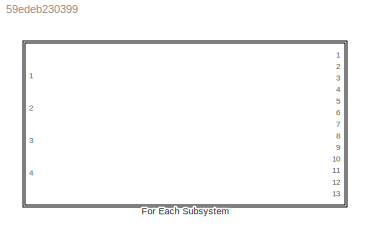
MODEL slx_59edeb230399
KIND library
CONFIG AbsTol = auto
CONFIG EnableMultiTasking = off
CONFIG FixedStep = auto
CONFIG MaxStep = auto
CONFIG MinStep = auto
CONFIG RelTol = 1e-3
CONFIG SampleTimeConstraint = Unconstrained
CONFIG Solver = VariableStepAuto
CONFIG SolverName = VariableStepAuto
CONFIG StartTime = 0.0
CONFIG StopTime = 10.0
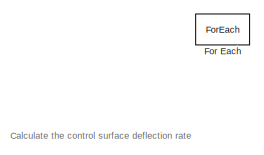
[diagram: For Each Subsystem - part 1/3, top left region]
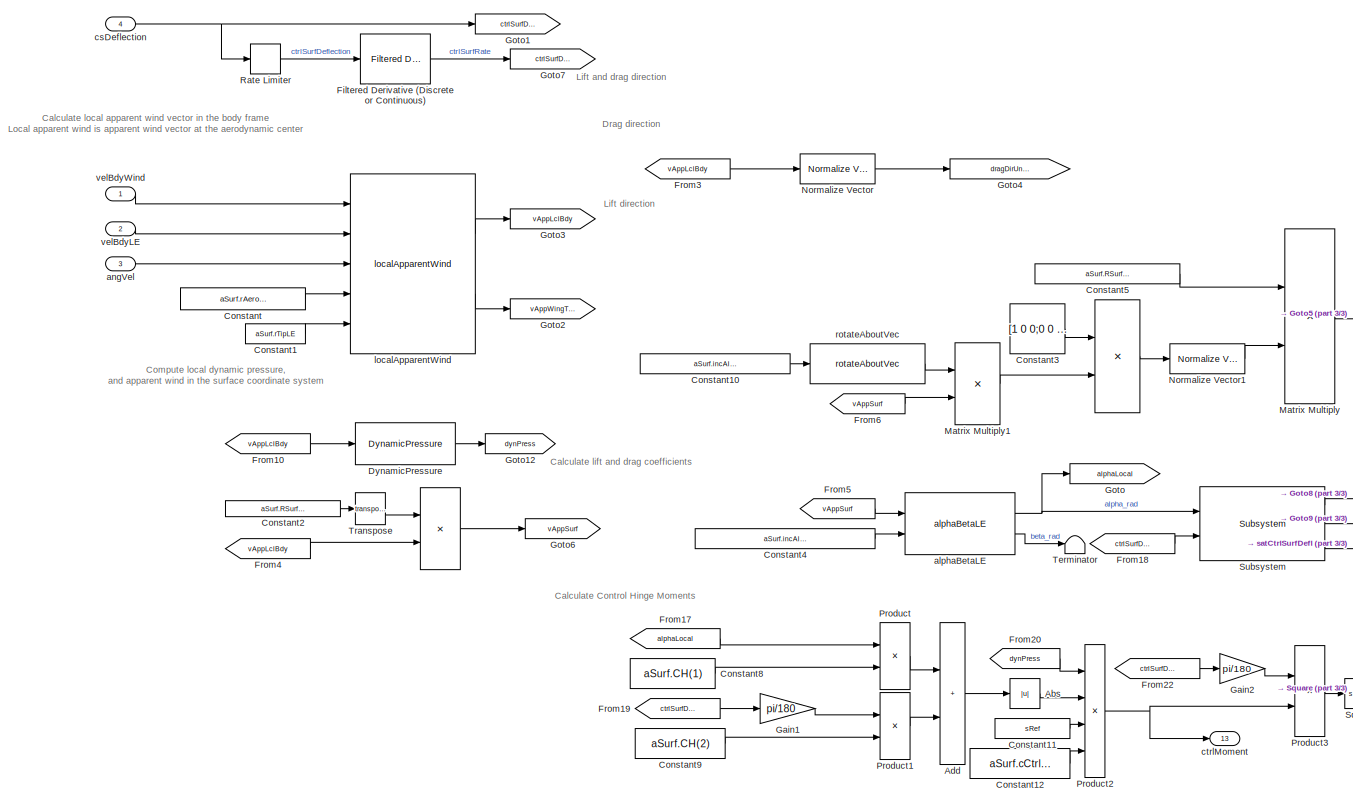
[diagram: For Each Subsystem - part 2/3, left side, full height]
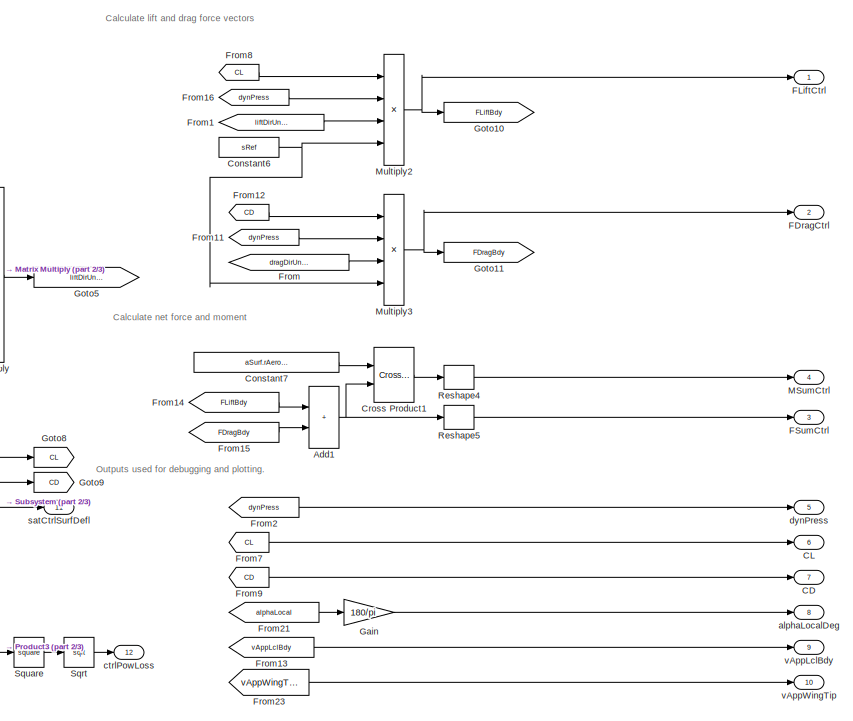
[diagram: For Each Subsystem - part 3/3, right side, full height]
BLOCK [SubSystem] For Each Subsystem
  Ports = [4, 13]
  RequestExecContextInheritance = off
  TreatAsAtomicUnit = on
BLOCK [Product] For Each Subsystem/ 
  Multiplication = Matrix(*)
  Ports = [2, 1]
BLOCK [Product] For Each Subsystem/  
  Multiplication = Matrix(*)
  Ports = [2, 1]
BLOCK [Abs] For Each Subsystem/Abs
  SaturateOnIntegerOverflow = off
BLOCK [Sum] For Each Subsystem/Add
  IconShape = rectangular
  Ports = [2, 1]
BLOCK [Sum] For Each Subsystem/Add1
  IconShape = rectangular
  Ports = [2, 1]
BLOCK [Outport] For Each Subsystem/CD
  ConcatenationDimension = 1
  Port = 7
  VectorParamsAs1DForOutWhenUnconnected = off
BLOCK [Outport] For Each Subsystem/CL
  ConcatenationDimension = 1
  Port = 6
  VectorParamsAs1DForOutWhenUnconnected = off
BLOCK [Constant] For Each Subsystem/Constant
  Value = aSurf.rAeroCent_SurfLE
  VectorParams1D = off
BLOCK [Constant] For Each Subsystem/Constant1
  Value = aSurf.rTipLE
  VectorParams1D = off
BLOCK [Constant] For Each Subsystem/Constant10
  Value = aSurf.incAlphaUnitVecSurf
  VectorParams1D = off
BLOCK [Constant] For Each Subsystem/Constant11
  Value = sRef
BLOCK [Constant] For Each Subsystem/Constant12
  Value = aSurf.cCtrlSurf
BLOCK [Constant] For Each Subsystem/Constant2
  Value = aSurf.RSurf2Bdy
  VectorParams1D = off
BLOCK [Constant] For Each Subsystem/Constant3
  Value = [1 0 0;0 0 0;0 0 1]
  VectorParams1D = off
BLOCK [Constant] For Each Subsystem/Constant4
  Value = aSurf.incAlphaUnitVecSurf
  VectorParams1D = off
BLOCK [Constant] For Each Subsystem/Constant5
  Value = aSurf.RSurf2Bdy
  VectorParams1D = off
BLOCK [Constant] For Each Subsystem/Constant6
  Value = sRef
BLOCK [Constant] For Each Subsystem/Constant7
  Value = aSurf.rAeroCent_SurfLE
  VectorParams1D = off
BLOCK [Constant] For Each Subsystem/Constant8
  Value = aSurf.CH(1)
BLOCK [Constant] For Each Subsystem/Constant9
  Value = aSurf.CH(2)
BLOCK [Reference] For Each Subsystem/Cross Product1  REF=vrlib/Utilities/Cross Product
  Ports = [2, 1]
  SourceBlock = vrlib/Utilities/Cross Product
  SourceProductBaseCode = SL
  SourceType = Cross Product
BLOCK [Reference] For Each Subsystem/DynamicPressure  REF=dynamicPressure_ul/DynamicPressure
  Ports = [1, 1]
  SourceBlock = dynamicPressure_ul/DynamicPressure
BLOCK [Outport] For Each Subsystem/FDragCtrl
  ConcatenationDimension = 1
  Port = 2
  VectorParamsAs1DForOutWhenUnconnected = off
BLOCK [Outport] For Each Subsystem/FLiftCtrl
  ConcatenationDimension = 1
  VectorParamsAs1DForOutWhenUnconnected = off
BLOCK [Outport] For Each Subsystem/FSumCtrl
  ConcatenationDimension = 1
  Port = 3
  VectorParamsAs1DForOutWhenUnconnected = off
BLOCK [Reference] For Each Subsystem/Filtered Derivative (Discrete or Continuous)  REF=eeGeneralControl/Filtered Derivative
(Discrete or Continuous)
  Ports = [1, 1]
  SourceBlock = eeGeneralControl/Filtered Derivative\n(Discrete or Continuous)
  SourceProductBaseCode = PS
  SourceType = Filtered Derivative (Discrete or Continuous)
BLOCK [ForEach] For Each Subsystem/For Each
  DisableCoverage = on
  IterateSubsysMaskParameter = on
  Ports = []
BLOCK [From] For Each Subsystem/From
  GotoTag = dragDirUnitVecBdy
BLOCK [From] For Each Subsystem/From1
  GotoTag = liftDirUnitVecBdy
BLOCK [From] For Each Subsystem/From10
  GotoTag = vAppLclBdy
BLOCK [From] For Each Subsystem/From11
  GotoTag = dynPress
BLOCK [From] For Each Subsystem/From12
  GotoTag = CD
BLOCK [From] For Each Subsystem/From13
  GotoTag = vAppLclBdy
BLOCK [From] For Each Subsystem/From14
  GotoTag = FLiftBdy
BLOCK [From] For Each Subsystem/From15
  GotoTag = FDragBdy
BLOCK [From] For Each Subsystem/From16
  GotoTag = dynPress
BLOCK [From] For Each Subsystem/From17
  GotoTag = alphaLocal
BLOCK [From] For Each Subsystem/From18
  GotoTag = ctrlSurfDefl
BLOCK [From] For Each Subsystem/From19
  GotoTag = ctrlSurfDefl
BLOCK [From] For Each Subsystem/From2
  GotoTag = dynPress
BLOCK [From] For Each Subsystem/From20
  GotoTag = dynPress
BLOCK [From] For Each Subsystem/From21
  GotoTag = alphaLocal
BLOCK [From] For Each Subsystem/From22
  GotoTag = ctrlSurfDeflRate
BLOCK [From] For Each Subsystem/From23
  GotoTag = vAppWingTip
BLOCK [From] For Each Subsystem/From3
  GotoTag = vAppLclBdy
BLOCK [From] For Each Subsystem/From4
  GotoTag = vAppLclBdy
BLOCK [From] For Each Subsystem/From5
  GotoTag = vAppSurf
BLOCK [From] For Each Subsystem/From6
  GotoTag = vAppSurf
BLOCK [From] For Each Subsystem/From7
  GotoTag = CL
BLOCK [From] For Each Subsystem/From8
  GotoTag = CL
BLOCK [From] For Each Subsystem/From9
  GotoTag = CD
BLOCK [Gain] For Each Subsystem/Gain
  Gain = 180/pi
BLOCK [Gain] For Each Subsystem/Gain1
  Gain = pi/180
BLOCK [Gain] For Each Subsystem/Gain2
  Gain = pi/180
BLOCK [Goto] For Each Subsystem/Goto
  GotoTag = alphaLocal
BLOCK [Goto] For Each Subsystem/Goto1
  GotoTag = ctrlSurfDefl
BLOCK [Goto] For Each Subsystem/Goto10
  GotoTag = FLiftBdy
BLOCK [Goto] For Each Subsystem/Goto11
  GotoTag = FDragBdy
BLOCK [Goto] For Each Subsystem/Goto12
  GotoTag = dynPress
BLOCK [Goto] For Each Subsystem/Goto2
  GotoTag = vAppWingTip
BLOCK [Goto] For Each Subsystem/Goto3
  GotoTag = vAppLclBdy
BLOCK [Goto] For Each Subsystem/Goto4
  GotoTag = dragDirUnitVecBdy
BLOCK [Goto] For Each Subsystem/Goto5
  GotoTag = liftDirUnitVecBdy
BLOCK [Goto] For Each Subsystem/Goto6
  GotoTag = vAppSurf
BLOCK [Goto] For Each Subsystem/Goto7
  GotoTag = ctrlSurfDeflRate
BLOCK [Goto] For Each Subsystem/Goto8
  GotoTag = CL
BLOCK [Goto] For Each Subsystem/Goto9
  GotoTag = CD
BLOCK [Outport] For Each Subsystem/MSumCtrl
  ConcatenationDimension = 1
  Port = 4
  PortDimensions = [3 1]
  VectorParamsAs1DForOutWhenUnconnected = off
BLOCK [Product] For Each Subsystem/Matrix Multiply
  Multiplication = Matrix(*)
  Ports = [2, 1]
BLOCK [Product] For Each Subsystem/Matrix Multiply1
  Multiplication = Matrix(*)
  Ports = [2, 1]
BLOCK [Product] For Each Subsystem/Multiply2
  Inputs = 4
  Ports = [4, 1]
BLOCK [Product] For Each Subsystem/Multiply3
  Inputs = 4
  Ports = [4, 1]
BLOCK [Reference] For Each Subsystem/Normalize Vector  REF=vrlib/Utilities/Normalize Vector
  Ports = [1, 1]
  SourceBlock = vrlib/Utilities/Normalize Vector
  SourceProductBaseCode = SL
  SourceType = Normalize Vector
BLOCK [Reference] For Each Subsystem/Normalize Vector1  REF=vrlib/Utilities/Normalize Vector
  Ports = [1, 1]
  SourceBlock = vrlib/Utilities/Normalize Vector
  SourceProductBaseCode = SL
  SourceType = Normalize Vector
BLOCK [Product] For Each Subsystem/Product
  Ports = [2, 1]
BLOCK [Product] For Each Subsystem/Product1
  Ports = [2, 1]
BLOCK [Product] For Each Subsystem/Product2
  Inputs = 4
  Ports = [4, 1]
BLOCK [Product] For Each Subsystem/Product3
  Ports = [2, 1]
BLOCK [RateLimiter] For Each Subsystem/Rate Limiter
  FallingSlewLimit = -aSurf.maxCtrlDefSpeed.Value
  RisingSlewLimit = aSurf.maxCtrlDefSpeed.Value
  SampleTimeMode = inherited
BLOCK [Reshape] For Each Subsystem/Reshape4
  OutputDimensionality = Column vector (2-D)
  Ports = [1, 1]
BLOCK [Reshape] For Each Subsystem/Reshape5
  OutputDimensionality = Column vector (2-D)
  Ports = [1, 1]
BLOCK [Sqrt] For Each Subsystem/Sqrt
BLOCK [Math] For Each Subsystem/Square
  Operator = square
  Ports = [1, 1]
BLOCK [Reference] For Each Subsystem/Subsystem  REF=ctrlSurfCalc_cl/Subsystem
  Ports = [2, 3]
  SourceBlock = ctrlSurfCalc_cl/Subsystem
BLOCK [Terminator] For Each Subsystem/Terminator
BLOCK [Math] For Each Subsystem/Transpose
  Operator = transpose
  Ports = [1, 1]
  SignedPower = on
BLOCK [Reference] For Each Subsystem/alphaBetaLE  REF=alphaBetaLE_ul/alphaBetaLE
  Ports = [2, 2]
  SourceBlock = alphaBetaLE_ul/alphaBetaLE
  SourceType = SubSystem
BLOCK [Outport] For Each Subsystem/alphaLocalDeg
  ConcatenationDimension = 1
  Port = 8
  VectorParamsAs1DForOutWhenUnconnected = off
BLOCK [Inport] For Each Subsystem/angVel
  Port = 3
BLOCK [Inport] For Each Subsystem/csDeflection
  Partition = on
  PartitionDimension = 1
  PartitionOffset = 0
  PartitionWidth = 1
  Port = 4
BLOCK [Outport] For Each Subsystem/ctrlMoment
  ConcatenationDimension = 1
  Port = 13
BLOCK [Outport] For Each Subsystem/ctrlPowLoss
  ConcatenationDimension = 1
  Port = 12
BLOCK [Outport] For Each Subsystem/dynPress
  ConcatenationDimension = 1
  Port = 5
  VectorParamsAs1DForOutWhenUnconnected = off
BLOCK [Reference] For Each Subsystem/localApparentWind  REF=localApparentWind_ul/localApparentWind
  Ports = [5, 2]
  SourceBlock = localApparentWind_ul/localApparentWind
  SourceType = SubSystem
BLOCK [Reference] For Each Subsystem/rotateAboutVec  REF=rotateAboutVec/rotateAboutVec
  Ports = [1, 1]
  SourceBlock = rotateAboutVec/rotateAboutVec
BLOCK [Outport] For Each Subsystem/satCtrlSurfDefl
  ConcatenationDimension = 1
  Port = 11
BLOCK [Outport] For Each Subsystem/vAppLclBdy
  ConcatenationDimension = 1
  Port = 9
  VectorParamsAs1DForOutWhenUnconnected = off
BLOCK [Outport] For Each Subsystem/vAppWingTip
  ConcatenationDimension = 1
  Port = 10
  VectorParamsAs1DForOutWhenUnconnected = off
BLOCK [Inport] For Each Subsystem/velBdyLE
  Port = 2
BLOCK [Inport] For Each Subsystem/velBdyWind
  Partition = on
  PartitionDimension = 2
  PartitionOffset = 0
  PartitionWidth = 1
ANNOTATION For Each Subsystem: Calculate Control Hinge Moments
ANNOTATION For Each Subsystem: Calculate lift and drag coefficients
ANNOTATION For Each Subsystem: Calculate lift and drag force vectors
ANNOTATION For Each Subsystem: Calculate local apparent wind vector in the body frame Local apparent wind is apparent wind vector at the aerodynamic center
ANNOTATION For Each Subsystem: Calculate net force and moment
ANNOTATION For Each Subsystem: Calculate the control surface deflection rate
ANNOTATION For Each Subsystem: Compute local dynamic pressure, and apparent wind in the surface coordinate system
ANNOTATION For Each Subsystem: Drag direction
ANNOTATION For Each Subsystem: Lift and drag direction
ANNOTATION For Each Subsystem: Lift direction
ANNOTATION For Each Subsystem: Outputs used for debugging and plotting.
LINE For Each Subsystem/  :1 -> For Each Subsystem/Goto6:1
LINE For Each Subsystem/ :1 -> For Each Subsystem/Normalize Vector1:1
LINE For Each Subsystem/Abs:1 -> For Each Subsystem/Product2:2
NET For Each Subsystem/Add1:1 -> For Each Subsystem/Cross Product1:2, For Each Subsystem/Reshape5:1
LINE For Each Subsystem/Add:1 -> For Each Subsystem/Abs:1
LINE For Each Subsystem/Constant10:1 -> For Each Subsystem/rotateAboutVec:1
LINE For Each Subsystem/Constant11:1 -> For Each Subsystem/Product2:3
LINE For Each Subsystem/Constant12:1 -> For Each Subsystem/Product2:4
LINE For Each Subsystem/Constant1:1 -> For Each Subsystem/localApparentWind:5
LINE For Each Subsystem/Constant2:1 -> For Each Subsystem/Transpose:1
LINE For Each Subsystem/Constant3:1 -> For Each Subsystem/ :1
LINE For Each Subsystem/Constant4:1 -> For Each Subsystem/alphaBetaLE:2
LINE For Each Subsystem/Constant5:1 -> For Each Subsystem/Matrix Multiply:1
NET For Each Subsystem/Constant6:1 -> For Each Subsystem/Multiply2:4, For Each Subsystem/Multiply3:4
LINE For Each Subsystem/Constant7:1 -> For Each Subsystem/Cross Product1:1
LINE For Each Subsystem/Constant8:1 -> For Each Subsystem/Product:2
LINE For Each Subsystem/Constant9:1 -> For Each Subsystem/Product1:2
LINE For Each Subsystem/Constant:1 -> For Each Subsystem/localApparentWind:4
LINE For Each Subsystem/Cross Product1:1 -> For Each Subsystem/Reshape4:1
LINE For Each Subsystem/DynamicPressure:1 -> For Each Subsystem/Goto12:1
LINE For Each Subsystem/Filtered Derivative (Discrete or Continuous):1 -> For Each Subsystem/Goto7:1
LINE For Each Subsystem/From10:1 -> For Each Subsystem/DynamicPressure:1
LINE For Each Subsystem/From11:1 -> For Each Subsystem/Multiply3:2
LINE For Each Subsystem/From12:1 -> For Each Subsystem/Multiply3:1
LINE For Each Subsystem/From13:1 -> For Each Subsystem/vAppLclBdy:1
LINE For Each Subsystem/From14:1 -> For Each Subsystem/Add1:1
LINE For Each Subsystem/From15:1 -> For Each Subsystem/Add1:2
LINE For Each Subsystem/From16:1 -> For Each Subsystem/Multiply2:2
LINE For Each Subsystem/From17:1 -> For Each Subsystem/Product:1
LINE For Each Subsystem/From18:1 -> For Each Subsystem/Subsystem:2
LINE For Each Subsystem/From19:1 -> For Each Subsystem/Gain1:1
LINE For Each Subsystem/From1:1 -> For Each Subsystem/Multiply2:3
LINE For Each Subsystem/From20:1 -> For Each Subsystem/Product2:1
LINE For Each Subsystem/From21:1 -> For Each Subsystem/Gain:1
LINE For Each Subsystem/From22:1 -> For Each Subsystem/Gain2:1
LINE For Each Subsystem/From23:1 -> For Each Subsystem/vAppWingTip:1
LINE For Each Subsystem/From2:1 -> For Each Subsystem/dynPress:1
LINE For Each Subsystem/From3:1 -> For Each Subsystem/Normalize Vector:1
LINE For Each Subsystem/From4:1 -> For Each Subsystem/  :2
LINE For Each Subsystem/From5:1 -> For Each Subsystem/alphaBetaLE:1
LINE For Each Subsystem/From6:1 -> For Each Subsystem/Matrix Multiply1:2
LINE For Each Subsystem/From7:1 -> For Each Subsystem/CL:1
LINE For Each Subsystem/From8:1 -> For Each Subsystem/Multiply2:1
LINE For Each Subsystem/From9:1 -> For Each Subsystem/CD:1
LINE For Each Subsystem/From:1 -> For Each Subsystem/Multiply3:3
LINE For Each Subsystem/Gain1:1 -> For Each Subsystem/Product1:1
LINE For Each Subsystem/Gain2:1 -> For Each Subsystem/Product3:1
LINE For Each Subsystem/Gain:1 -> For Each Subsystem/alphaLocalDeg:1
LINE For Each Subsystem/Matrix Multiply1:1 -> For Each Subsystem/ :2
LINE For Each Subsystem/Matrix Multiply:1 -> For Each Subsystem/Goto5:1
NET For Each Subsystem/Multiply2:1 -> For Each Subsystem/FLiftCtrl:1, For Each Subsystem/Goto10:1
NET For Each Subsystem/Multiply3:1 -> For Each Subsystem/FDragCtrl:1, For Each Subsystem/Goto11:1
LINE For Each Subsystem/Normalize Vector1:1 -> For Each Subsystem/Matrix Multiply:2
LINE For Each Subsystem/Normalize Vector:1 -> For Each Subsystem/Goto4:1
LINE For Each Subsystem/Product1:1 -> For Each Subsystem/Add:2
NET For Each Subsystem/Product2:1 -> For Each Subsystem/Product3:2, For Each Subsystem/ctrlMoment:1
LINE For Each Subsystem/Product3:1 -> For Each Subsystem/Square:1
LINE For Each Subsystem/Product:1 -> For Each Subsystem/Add:1
LINE For Each Subsystem/Rate Limiter:1 -> For Each Subsystem/Filtered Derivative (Discrete or Continuous):1
LINE For Each Subsystem/Reshape4:1 -> For Each Subsystem/MSumCtrl:1
LINE For Each Subsystem/Reshape5:1 -> For Each Subsystem/FSumCtrl:1
LINE For Each Subsystem/Sqrt:1 -> For Each Subsystem/ctrlPowLoss:1
LINE For Each Subsystem/Square:1 -> For Each Subsystem/Sqrt:1
LINE For Each Subsystem/Subsystem:1 -> For Each Subsystem/Goto8:1
LINE For Each Subsystem/Subsystem:2 -> For Each Subsystem/Goto9:1
LINE For Each Subsystem/Subsystem:3 -> For Each Subsystem/satCtrlSurfDefl:1
LINE For Each Subsystem/Transpose:1 -> For Each Subsystem/  :1
NET For Each Subsystem/alphaBetaLE:1 -> For Each Subsystem/Goto:1, For Each Subsystem/Subsystem:1
LINE For Each Subsystem/alphaBetaLE:2 -> For Each Subsystem/Terminator:1
LINE For Each Subsystem/angVel:1 -> For Each Subsystem/localApparentWind:3
NET For Each Subsystem/csDeflection:1 -> For Each Subsystem/Goto1:1, For Each Subsystem/Rate Limiter:1
LINE For Each Subsystem/localApparentWind:1 -> For Each Subsystem/Goto3:1
LINE For Each Subsystem/localApparentWind:2 -> For Each Subsystem/Goto2:1
LINE For Each Subsystem/rotateAboutVec:1 -> For Each Subsystem/Matrix Multiply1:1
LINE For Each Subsystem/velBdyLE:1 -> For Each Subsystem/localApparentWind:2
LINE For Each Subsystem/velBdyWind:1 -> For Each Subsystem/localApparentWind:1
note: NET lines group one-source signal fan-out (src -> all destinations, sorted); 1:1 wires keep LINE
